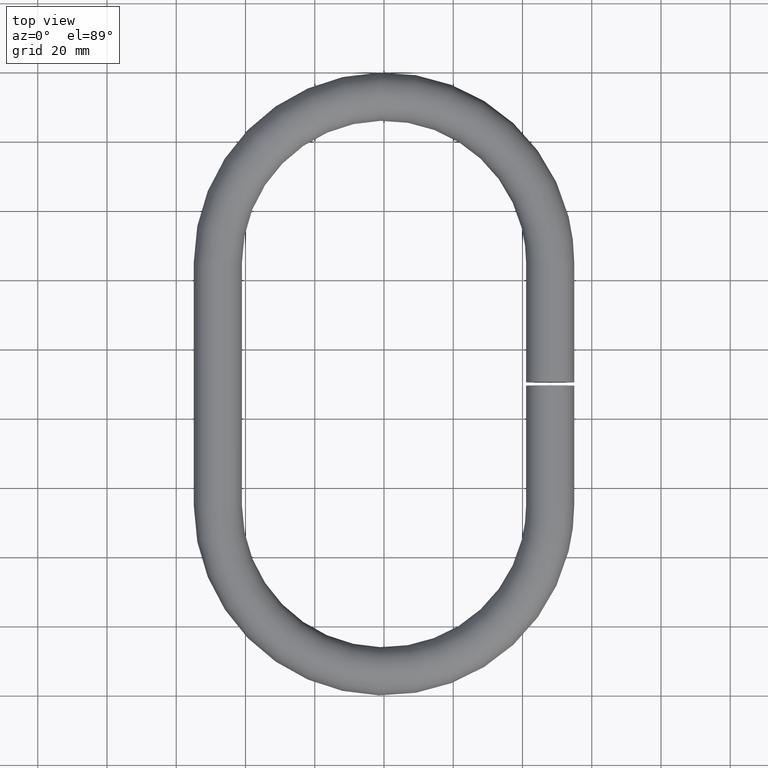
[diagram: clean part render]
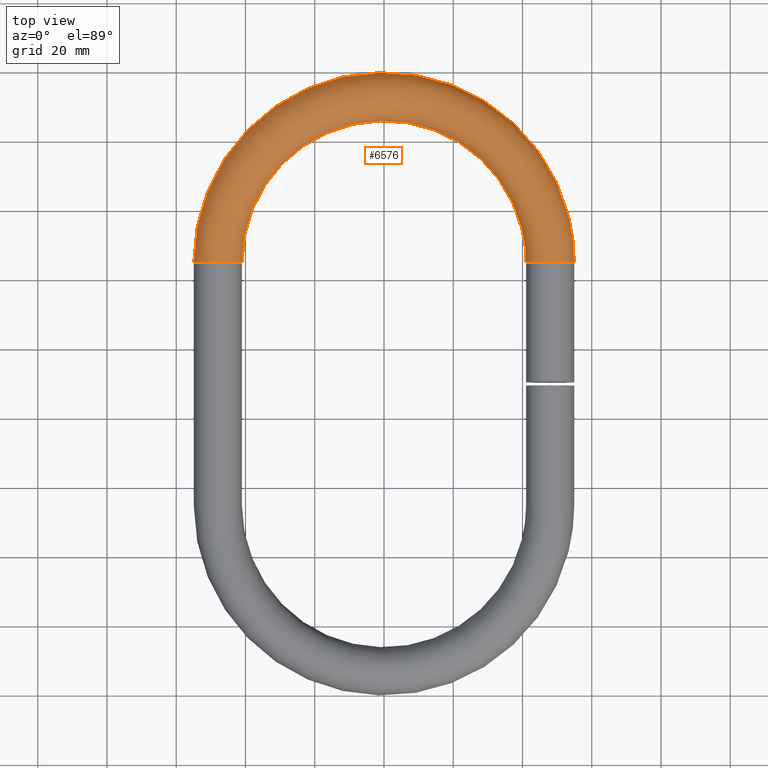
[diagram: same view with one face highlighted and labeled with its STEP entity id]
A machine part, top view. The second image highlights one B-rep face of the part: STEP entity #6576.
In plain terms, the highlighted toroidal blend (fillet) surface has major radius 48 mm and minor (blend) radius 7 mm.
Its self-contained STEP definition (entity closure, byte-faithful):
#120 = DIRECTION ( 'NONE',  ( 6.123233995736766000E-017, -1.000000000000000000, 0.0000000000000000000 ) ) ;
#486 = CARTESIAN_POINT ( 'NONE',  ( 0.0000000000000000000, 125.0000000000000000, 0.0000000000000000000 ) ) ;
#501 = DIRECTION ( 'NONE',  ( -1.836970198721029700E-016, 1.000000000000000000, 0.0000000000000000000 ) ) ;
#994 = DIRECTION ( 'NONE',  ( 0.0000000000000000000, 0.0000000000000000000, -1.000000000000000000 ) ) ;
#1259 = EDGE_LOOP ( 'NONE', ( #5108 ) ) ;
#1644 = CARTESIAN_POINT ( 'NONE',  ( -48.00000000000000700, 124.9999999999999900, -7.000000000000000000 ) ) ;
#1699 = EDGE_CURVE ( 'NONE', #3299, #3299, #7486, .T. ) ;
#2568 = CARTESIAN_POINT ( 'NONE',  ( 48.00000000000001400, 125.0000000000000000, -7.000000000000000000 ) ) ;
#2635 = FACE_OUTER_BOUND ( 'NONE', #1259, .T. ) ;
#3040 = DIRECTION ( 'NONE',  ( -0.0000000000000000000, -0.0000000000000000000, -1.000000000000000000 ) ) ;
#3299 = VERTEX_POINT ( 'NONE', #1644 ) ;
#4570 = CARTESIAN_POINT ( 'NONE',  ( 48.00000000000001400, 125.0000000000000000, 0.0000000000000000000 ) ) ;
#4688 = VERTEX_POINT ( 'NONE', #2568 ) ;
#4841 = ORIENTED_EDGE ( 'NONE', *, *, #1699, .F. ) ;
#5108 = ORIENTED_EDGE ( 'NONE', *, *, #10231, .T. ) ;
#5529 = EDGE_LOOP ( 'NONE', ( #4841 ) ) ;
#5573 = TOROIDAL_SURFACE ( 'NONE', #6916, 48.00000000000000700, 7.000000000000000000 ) ;
#6224 = DIRECTION ( 'NONE',  ( 0.0000000000000000000, 0.0000000000000000000, -1.000000000000000000 ) ) ;
#6286 = AXIS2_PLACEMENT_3D ( 'NONE', #7573, #120, #994 ) ;
#6576 = ADVANCED_FACE ( 'NONE', ( #6734, #2635 ), #5573, .T. ) ;
#6734 = FACE_OUTER_BOUND ( 'NONE', #5529, .T. ) ;
#6916 = AXIS2_PLACEMENT_3D ( 'NONE', #486, #3040, #9456 ) ;
#7142 = AXIS2_PLACEMENT_3D ( 'NONE', #4570, #501, #6224 ) ;
#7486 = CIRCLE ( 'NONE', #6286, 7.000000000000000000 ) ;
#7573 = CARTESIAN_POINT ( 'NONE',  ( -48.00000000000000700, 124.9999999999999900, 0.0000000000000000000 ) ) ;
#8951 = CIRCLE ( 'NONE', #7142, 7.000000000000000000 ) ;
#9456 = DIRECTION ( 'NONE',  ( -1.000000000000000000, 0.0000000000000000000, 0.0000000000000000000 ) ) ;
#10231 = EDGE_CURVE ( 'NONE', #4688, #4688, #8951, .T. ) ;